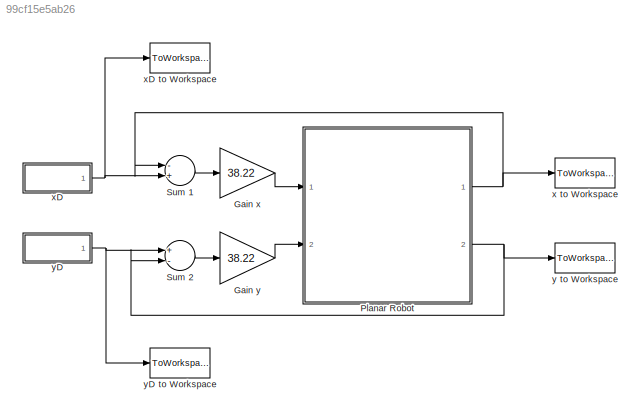
MODEL slx_99cf15e5ab26
KIND model
CONFIG AbsTol = auto
CONFIG EnableMultiTasking = on
CONFIG FixedStep = 0.01
CONFIG MaxStep = auto
CONFIG MinStep = auto
CONFIG RelTol = 1e-3
CONFIG SampleTimeConstraint = Unconstrained
CONFIG Solver = ode3
CONFIG SolverName = ode3
CONFIG StartTime = 0.0
CONFIG StopTime = 10.0
BLOCK [Gain] Gain x
  Gain = 38.22
  OutDataTypeStr = Inherit: Inherit via internal rule
  ParamDataTypeStr = Inherit: Inherit via internal rule
  SaturateOnIntegerOverflow = off
BLOCK [Gain] Gain y
  Gain = 38.22
  OutDataTypeStr = Inherit: Inherit via internal rule
  ParamDataTypeStr = Inherit: Inherit via internal rule
  SaturateOnIntegerOverflow = off
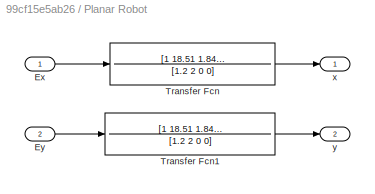
BLOCK [SubSystem] Planar Robot
  Ports = [2, 2]
  RequestExecContextInheritance = off
  Variant = off
BLOCK [Inport] Planar Robot/Ex
  IconDisplay = Port number
BLOCK [Inport] Planar Robot/Ey
  IconDisplay = Port number
  Port = 2
BLOCK [TransferFcn] Planar Robot/Transfer Fcn
  Denominator = [1.2 2 0 0]
  Numerator = [1 18.51 1.841]
BLOCK [TransferFcn] Planar Robot/Transfer Fcn1
  Denominator = [1.2 2 0 0]
  Numerator = [1 18.51 1.841]
BLOCK [Outport] Planar Robot/x
  IconDisplay = Port number
BLOCK [Outport] Planar Robot/y
  IconDisplay = Port number
  Port = 2
BLOCK [Sum] Sum 1
  InputSameDT = off
  Inputs = -+
  OutDataTypeStr = Inherit: Inherit via internal rule
  Ports = [2, 1]
  SaturateOnIntegerOverflow = off
BLOCK [Sum] Sum 2
  InputSameDT = off
  Inputs = +-
  OutDataTypeStr = Inherit: Inherit via internal rule
  Ports = [2, 1]
  SaturateOnIntegerOverflow = off
BLOCK [ToWorkspace] x to Workspace
  MaxDataPoints = inf
  Ports = [1]
  SampleTime = -1
  SaveFormat = Timeseries
  VariableName = x
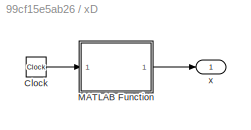
BLOCK [SubSystem] xD
  Ports = [0, 1]
  RequestExecContextInheritance = off
  Variant = off
BLOCK [ToWorkspace] xD to Workspace 
  MaxDataPoints = inf
  Ports = [1]
  SampleTime = -1
  SaveFormat = Timeseries
  VariableName = xD
BLOCK [Clock] xD/Clock
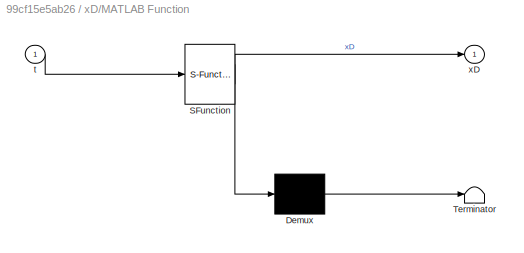
BLOCK [SubSystem] xD/MATLAB Function
  ErrorFcn = Stateflow.Translate.translate
  PermitHierarchicalResolution = ExplicitOnly
  Ports = [1, 1]
  RequestExecContextInheritance = off
  SFBlockType = MATLAB Function
  TreatAsAtomicUnit = on
  Variant = off
BLOCK [Demux] xD/MATLAB Function/ Demux 
  Outputs = 1
  Ports = [1, 1]
BLOCK [S-Function] xD/MATLAB Function/ SFunction 
  EnableBusSupport = on
  FunctionName = sf_sfun
  PortCounts = [1 2]
  Ports = [1, 2]
  SFcnIsStateOwnerBlock = off
  SFunctionDeploymentMode = off
  Tag = Stateflow S-Function PlanarRobot 7
BLOCK [Terminator] xD/MATLAB Function/ Terminator 
BLOCK [Inport] xD/MATLAB Function/t
  IconDisplay = Port number
BLOCK [Outport] xD/MATLAB Function/xD
  IconDisplay = Port number
BLOCK [Outport] xD/x
  IconDisplay = Port number
BLOCK [ToWorkspace] y to Workspace
  MaxDataPoints = inf
  Ports = [1]
  SampleTime = -1
  SaveFormat = Timeseries
  VariableName = y
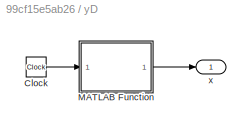
BLOCK [SubSystem] yD
  Ports = [0, 1]
  RequestExecContextInheritance = off
  Variant = off
BLOCK [ToWorkspace] yD to Workspace
  MaxDataPoints = inf
  Ports = [1]
  SampleTime = -1
  SaveFormat = Timeseries
  VariableName = yD
BLOCK [Clock] yD/Clock
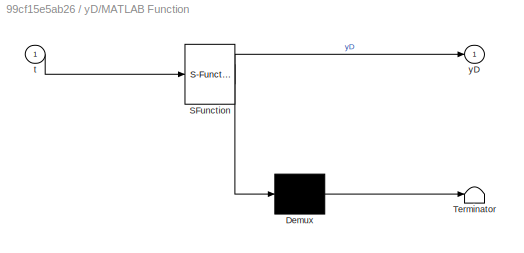
BLOCK [SubSystem] yD/MATLAB Function
  ErrorFcn = Stateflow.Translate.translate
  PermitHierarchicalResolution = ExplicitOnly
  Ports = [1, 1]
  RequestExecContextInheritance = off
  SFBlockType = MATLAB Function
  TreatAsAtomicUnit = on
  Variant = off
BLOCK [Demux] yD/MATLAB Function/ Demux 
  Outputs = 1
  Ports = [1, 1]
BLOCK [S-Function] yD/MATLAB Function/ SFunction 
  EnableBusSupport = on
  FunctionName = sf_sfun
  PortCounts = [1 2]
  Ports = [1, 2]
  SFcnIsStateOwnerBlock = off
  SFunctionDeploymentMode = off
  Tag = Stateflow S-Function PlanarRobot 8
BLOCK [Terminator] yD/MATLAB Function/ Terminator 
BLOCK [Inport] yD/MATLAB Function/t
  IconDisplay = Port number
BLOCK [Outport] yD/MATLAB Function/yD
  IconDisplay = Port number
BLOCK [Outport] yD/x
  IconDisplay = Port number
LINE Gain x:1 -> Planar Robot:1
LINE Gain y:1 -> Planar Robot:2
LINE Planar Robot/Ex:1 -> Planar Robot/Transfer Fcn:1
LINE Planar Robot/Ey:1 -> Planar Robot/Transfer Fcn1:1
LINE Planar Robot/Transfer Fcn1:1 -> Planar Robot/y:1
LINE Planar Robot/Transfer Fcn:1 -> Planar Robot/x:1
NET Planar Robot:1 -> Sum 1:1, x to Workspace:1
NET Planar Robot:2 -> Sum 2:2, y to Workspace:1
LINE Sum 1:1 -> Gain x:1
LINE Sum 2:1 -> Gain y:1
LINE xD/Clock:1 -> xD/MATLAB Function:1
LINE xD/MATLAB Function:1 -> xD/x:1
NET xD:1 -> Sum 1:2, xD to Workspace :1
LINE yD/Clock:1 -> yD/MATLAB Function:1
LINE yD/MATLAB Function:1 -> yD/x:1
NET yD:1 -> Sum 2:1, yD to Workspace:1
note: NET lines group one-source signal fan-out (src -> all destinations, sorted); 1:1 wires keep LINE
CHART xD/MATLAB Function states=1 transitions=1
  STATE_LABEL 'eML_blk_kernel()'
  STATE_LABEL 'SCRIPT:\nfunction xD = fcn(t)\n% x-coordinates of desired trajectory.\n\nxD = -t.*(t>=0).*(t<0.5) + ...\n   -0.5*(t>=0.5).*(t<1.5) + ...\n   (t-2).*(t>=1.5).*(t<2.5) + ...\n   0.5*(t>=2.5).*(t<3.5) + ...\n   -(t-4).*(t>=3.5).*(t<4) + ...\n   -0.5*sin(2*(t-4)).*(t>=4).*(t<4+pi);\n'
CHART yD/MATLAB Function states=1 transitions=1
  STATE_LABEL 'eML_blk_kernel()'
  STATE_LABEL 'SCRIPT:\nfunction yD = fcn(t)\n% y-coordinates of desired trajectory.\n\nyD = 0*(t>=0).*(t<0.5) + ...\n    (t-0.5).*(t>=0.5).*(t<1.5) + ...\n    1*(t>=1.5).*(t<2.5) + ...\n    -(t-3.5).*(t>=2.5).*(t<3.5) + ...\n    0*(t>=3.5).*(t<4) + ...\n    -0.5*(cos(2*(t-4))-1).*(t>=4).*(t<4+pi);\n'
